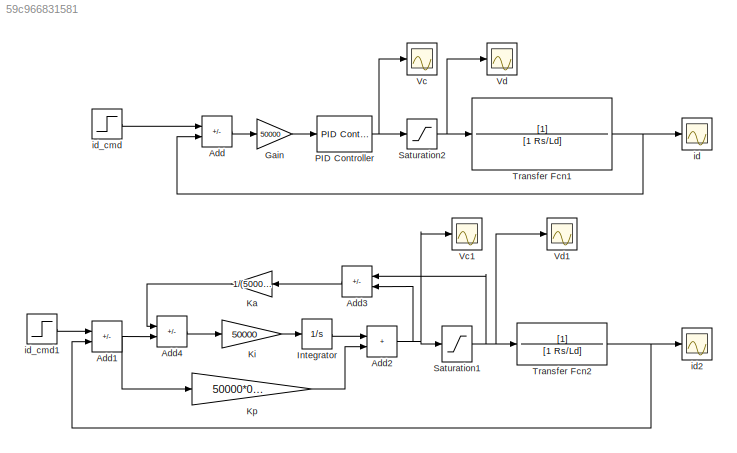
MODEL slx_59c966831581
KIND model
CONFIG AbsTol = auto
CONFIG EnableMultiTasking = off
CONFIG FixedStep = auto
CONFIG MaxStep = 0.0005
CONFIG MinStep = auto
CONFIG RelTol = 1e-3
CONFIG SampleTimeConstraint = Unconstrained
CONFIG SolverName = VariableStepAuto
CONFIG StartTime = 0.0
CONFIG StopTime = 2
BLOCK [Sum] Add
  IconShape = rectangular
  Inputs = +-
BLOCK [Sum] Add1
  IconShape = rectangular
  Inputs = +-
BLOCK [Sum] Add2
  IconShape = rectangular
BLOCK [Sum] Add3
  IconShape = rectangular
  Inputs = -+
  NameLocation = top
BLOCK [Sum] Add4
  IconShape = rectangular
  Inputs = -+
BLOCK [Gain] Gain
  Gain = 50000
BLOCK [Integrator] Integrator
BLOCK [Gain] Ka
  Gain = 1/(50000*0.0048)
  NameLocation = top
BLOCK [Gain] Ki
  Gain = 50000
BLOCK [Gain] Kp
  Gain = 50000*0.0048
BLOCK [Reference] PID Controller  REF=slpidlib/PID Controller
  LibrarySourceBlock = simulink/Continuous/PID Controller
  SourceBlock = slpidlib/PID Controller
  SourceType = PID 1dof
BLOCK [Saturate] Saturation1
  LowerLimit = -150
  UpperLimit = 150
BLOCK [Saturate] Saturation2
  LowerLimit = -150
  UpperLimit = 150
BLOCK [TransferFcn] Transfer Fcn1
  Denominator = [1 Rs/Ld]
BLOCK [TransferFcn] Transfer Fcn2
  Denominator = [1 Rs/Ld]
BLOCK [Scope] Vc
  Floating = off
  NumInputPorts = 1
  ScopeSpecificationString = Simulink.scopes.TimeScopeBlockCfg('CurrentConfiguration', extmgr.ConfigurationSet(extmgr.Configuration('Core','General UI',true,'FigureColor',[1 1 1]),extmgr.Configuration('Core','Source UI',true),extmgr.Configuration('Sources','WiredSimulink',true,'DataLoggingVariableName','ScopeData5'),extmgr.Configuration('Visuals','Time Domain',true,'SerializedDisplays',{struct('MinYLimReal','-1826.65234','Max...<+1592ch>
BLOCK [Scope] Vc1
  Floating = off
  NumInputPorts = 1
  ScopeSpecificationString = Simulink.scopes.TimeScopeBlockCfg('CurrentConfiguration', extmgr.ConfigurationSet(extmgr.Configuration('Core','General UI',true,'FigureColor',[1 1 1]),extmgr.Configuration('Core','Source UI',true),extmgr.Configuration('Sources','WiredSimulink',true,'DataLoggingVariableName','ScopeData3'),extmgr.Configuration('Visuals','Time Domain',true,'SerializedDisplays',{struct('MinYLimReal','204.03246','MaxYL...<+1570ch>
BLOCK [Scope] Vd
  Floating = off
  NumInputPorts = 1
  ScopeSpecificationString = Simulink.scopes.TimeScopeBlockCfg('CurrentConfiguration', extmgr.ConfigurationSet(extmgr.Configuration('Core','General UI',true,'FigureColor',[1 1 1]),extmgr.Configuration('Core','Source UI',true),extmgr.Configuration('Sources','WiredSimulink',true,'DataLoggingVariableName','ScopeData1'),extmgr.Configuration('Visuals','Time Domain',true,'SerializedDisplays',{struct('MinYLimReal','-18.75','MaxYLimR...<+1555ch>
BLOCK [Scope] Vd1
  Floating = off
  NumInputPorts = 1
  ScopeSpecificationString = Simulink.scopes.TimeScopeBlockCfg('CurrentConfiguration', extmgr.ConfigurationSet(extmgr.Configuration('Core','General UI',true,'FigureColor',[1 1 1]),extmgr.Configuration('Core','Source UI',true),extmgr.Configuration('Sources','WiredSimulink',true,'DataLoggingVariableName','ScopeData4'),extmgr.Configuration('Visuals','Time Domain',true,'SerializedDisplays',{struct('MinYLimReal','-18.75','MaxYLimR...<+1558ch>
BLOCK [Scope] id
  Floating = off
  NumInputPorts = 1
  ScopeSpecificationString = Simulink.scopes.TimeScopeBlockCfg('CurrentConfiguration', extmgr.ConfigurationSet(extmgr.Configuration('Core','General UI',true,'FigureColor',[1 1 1]),extmgr.Configuration('Core','Source UI',true),extmgr.Configuration('Sources','WiredSimulink',true,'DataLoggingVariableName','ScopeData1'),extmgr.Configuration('Visuals','Time Domain',true,'SerializedDisplays',{struct('MinYLimReal','0.59823','MaxYLim...<+1563ch>
BLOCK [Scope] id2
  Floating = off
  NumInputPorts = 1
  ScopeSpecificationString = Simulink.scopes.TimeScopeBlockCfg('CurrentConfiguration', extmgr.ConfigurationSet(extmgr.Configuration('Core','General UI',true,'FigureColor',[1 1 1]),extmgr.Configuration('Core','Source UI',true),extmgr.Configuration('Sources','WiredSimulink',true,'DataLoggingVariableName','ScopeData2'),extmgr.Configuration('Visuals','Time Domain',true,'SerializedDisplays',{struct('MinYLimReal','-0.08906','MaxYLi...<+1568ch>
BLOCK [Step] id_cmd
  SampleTime = 0
BLOCK [Step] id_cmd1
  SampleTime = 0
NET Add1:1 -> Add4:2, Kp:1
NET Add2:1 -> Add3:2, Saturation1:1, Vc1:1
LINE Add3:1 -> Ka:1
LINE Add4:1 -> Ki:1
LINE Add:1 -> Gain:1
LINE Gain:1 -> PID Controller:1
LINE Integrator:1 -> Add2:1
LINE Ka:1 -> Add4:1
LINE Ki:1 -> Integrator:1
LINE Kp:1 -> Add2:2
NET PID Controller:1 -> Saturation2:1, Vc:1
NET Saturation1:1 -> Add3:1, Transfer Fcn2:1, Vd1:1
NET Saturation2:1 -> Transfer Fcn1:1, Vd:1
NET Transfer Fcn1:1 -> Add:2, id:1
NET Transfer Fcn2:1 -> Add1:2, id2:1
LINE id_cmd1:1 -> Add1:1
LINE id_cmd:1 -> Add:1
note: NET lines group one-source signal fan-out (src -> all destinations, sorted); 1:1 wires keep LINE
